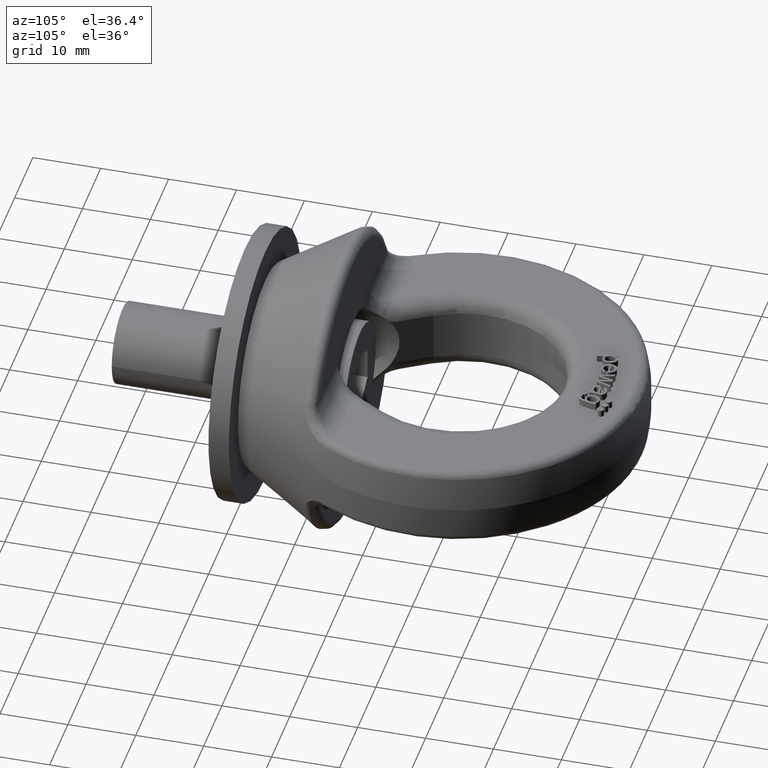
[diagram: clean part render]
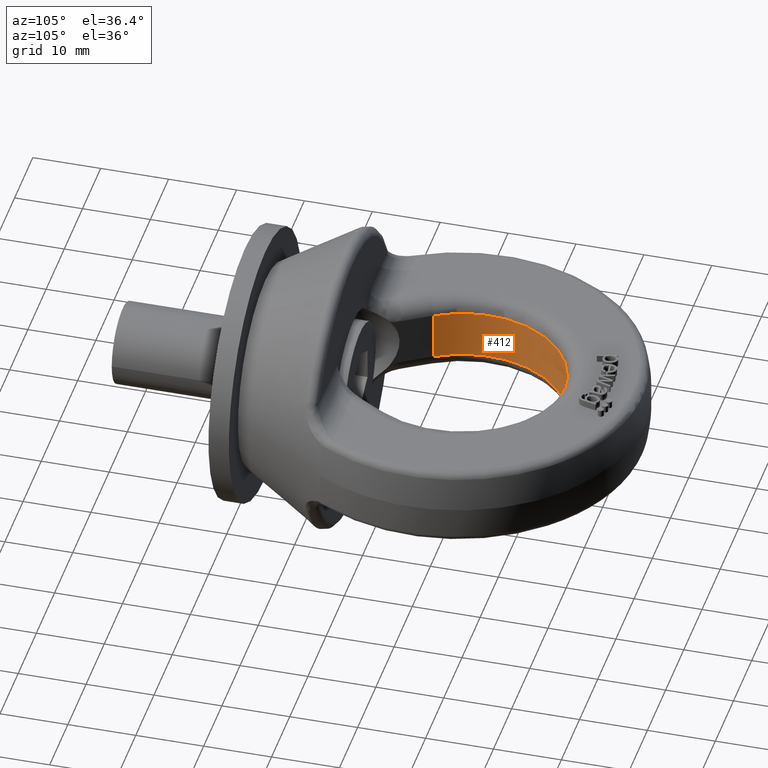
[diagram: same view with one face highlighted and labeled with its STEP entity id]
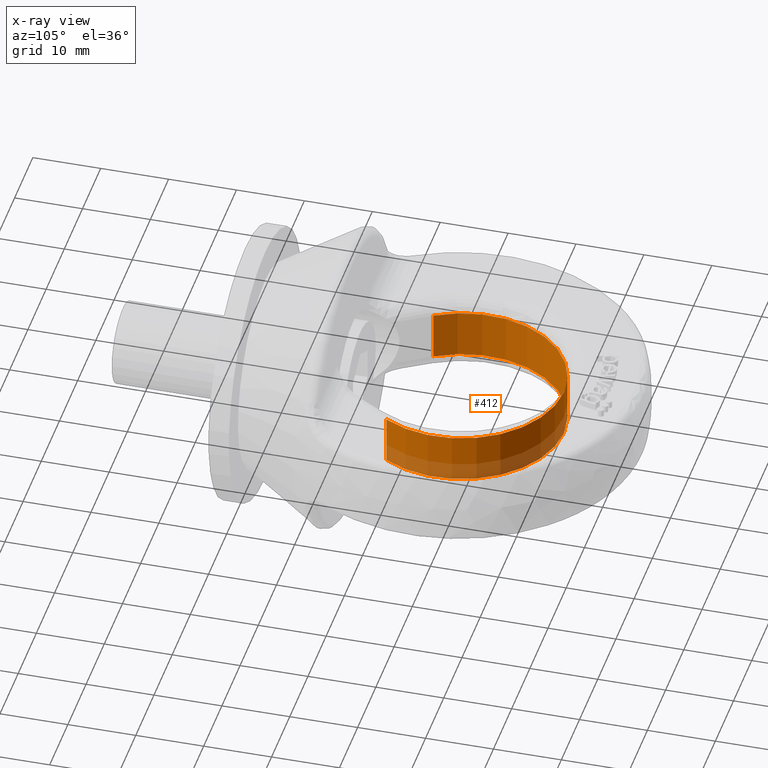
[diagram: x-ray of the same camera — body ghosted, the highlighted face saturated]
A machine part, auxiliary view. The second image highlights one B-rep face of the part: STEP entity #412.
The next image is the same camera in x-ray: the body ghosted, the highlighted face saturated — about 21% of this face is hidden behind the body in this view.
In plain terms, the highlighted cylindrical surface (partial cylindrical patch) has radius 15 mm, axis along (0, 0, -1).
Its self-contained STEP definition (entity closure, byte-faithful):
#225=CYLINDRICAL_SURFACE('',#3364,15.);
#248=FACE_OUTER_BOUND('',#820,.T.);
#412=ADVANCED_FACE('',(#248),#225,.F.);
#701=CIRCLE('',#3362,15.);
#702=CIRCLE('',#3363,15.);
#820=EDGE_LOOP('',(#1547,#1548,#1549,#1550));
#1062=LINE('',#4491,#1254);
#1063=LINE('',#4496,#1255);
#1254=VECTOR('',#3596,1.);
#1255=VECTOR('',#3599,1.);
#1547=ORIENTED_EDGE('',*,*,#2729,.F.);
#1548=ORIENTED_EDGE('',*,*,#2730,.T.);
#1549=ORIENTED_EDGE('',*,*,#2731,.T.);
#1550=ORIENTED_EDGE('',*,*,#2732,.T.);
#2431=VERTEX_POINT('',#4492);
#2432=VERTEX_POINT('',#4493);
#2433=VERTEX_POINT('',#4495);
#2434=VERTEX_POINT('',#4497);
#2729=EDGE_CURVE('',#2431,#2432,#1062,.T.);
#2730=EDGE_CURVE('',#2431,#2433,#701,.T.);
#2731=EDGE_CURVE('',#2433,#2434,#1063,.T.);
#2732=EDGE_CURVE('',#2434,#2432,#702,.T.);
#3362=AXIS2_PLACEMENT_3D('',#4494,#3597,#3598);
#3363=AXIS2_PLACEMENT_3D('',#4498,#3600,#3601);
#3364=AXIS2_PLACEMENT_3D('',#4499,#3602,#3603);
#3596=DIRECTION('',(0.,0.,1.));
#3597=DIRECTION('',(2.34291072916505E-15,1.14557210677714E-16,-1.));
#3598=DIRECTION('',(-3.08148791101958E-31,1.,1.15648231731787E-16));
#3599=DIRECTION('',(0.,0.,1.));
#3600=DIRECTION('',(0.,1.14557210677714E-16,1.));
#3601=DIRECTION('',(0.,1.,-1.15648231731787E-16));
#3602=DIRECTION('',(0.,0.,-1.));
#3603=DIRECTION('',(-1.,0.,0.));
#4491=CARTESIAN_POINT('',(-12.8741439841771,24.3021810443038,30.25));
#4492=CARTESIAN_POINT('',(-12.8741439841771,24.3021810443037,-3.60000000000003));
#4493=CARTESIAN_POINT('',(-12.8741439841771,24.3021810443038,3.60000000000001));
#4494=CARTESIAN_POINT('',(8.43447862499418E-15,32.,-3.6));
#4495=CARTESIAN_POINT('',(12.8741439841771,24.3021810443038,-3.59999999999998));
#4496=CARTESIAN_POINT('',(12.8741439841771,24.3021810443037,30.25));
#4497=CARTESIAN_POINT('',(12.8741439841771,24.3021810443037,3.6));
#4498=CARTESIAN_POINT('',(0.,32.,3.6));
#4499=CARTESIAN_POINT('',(0.,32.,30.25));